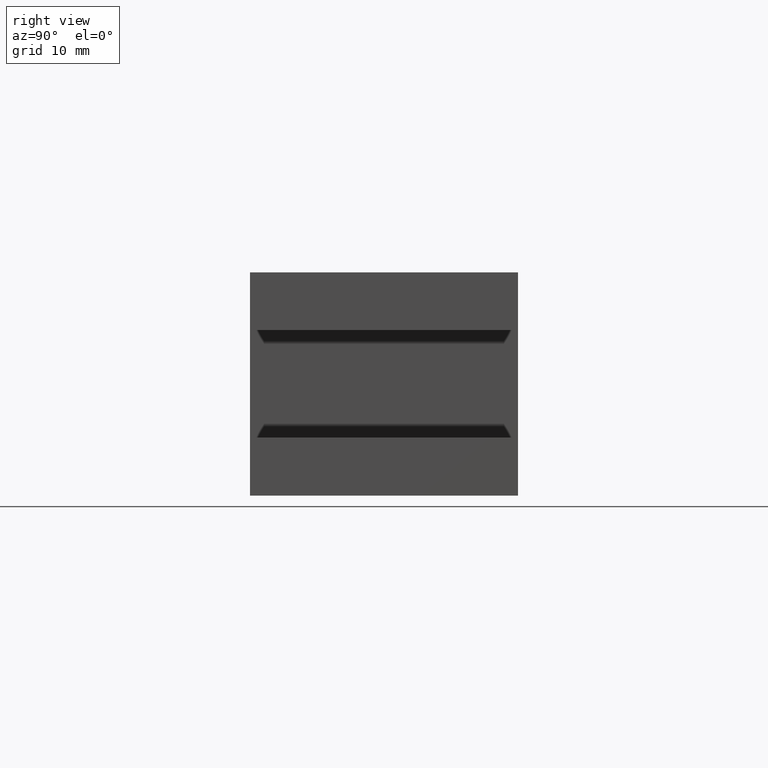
[diagram: clean part render]
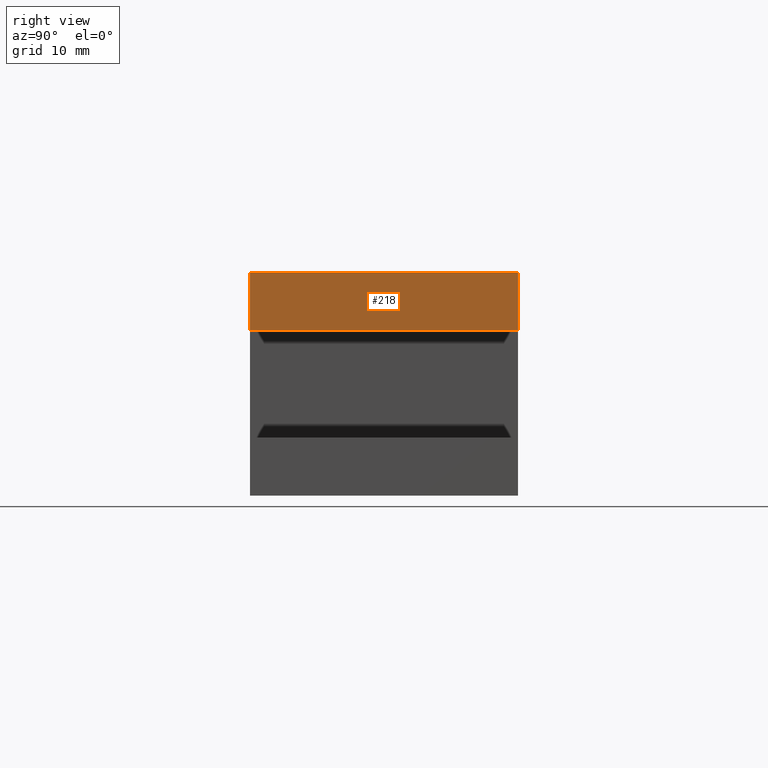
[diagram: same view with one face highlighted and labeled with its STEP entity id]
A machine part, right view. The second image highlights one B-rep face of the part: STEP entity #218.
In plain terms, the highlighted planar face has unit normal (1, 0, 0).
Its self-contained STEP definition (entity closure, byte-faithful):
#89=CARTESIAN_POINT('',(59.825283991875168,-11.961124341222460,18.499999999999993));
#90=VERTEX_POINT('',#89);
#98=CARTESIAN_POINT('',(59.825283991875160,18.038875658777538,18.499999999999993));
#99=VERTEX_POINT('',#98);
#106=CARTESIAN_POINT('',(59.825283991875168,-11.961124341222460,18.499999999999993));
#107=DIRECTION('',(0.0,1.0,0.0));
#108=VECTOR('',#107,30.0);
#109=LINE('',#106,#108);
#110=EDGE_CURVE('',#90,#99,#109,.T.);
#154=CARTESIAN_POINT('',(59.825283991875168,-11.961124341222460,25.0));
#155=VERTEX_POINT('',#154);
#156=CARTESIAN_POINT('',(59.825283991875168,-11.961124341222460,18.499999999999993));
#157=DIRECTION('',(0.0,0.0,1.0));
#158=VECTOR('',#157,6.500000000000007);
#159=LINE('',#156,#158);
#160=EDGE_CURVE('',#90,#155,#159,.T.);
#195=CARTESIAN_POINT('',(59.825283991875160,18.038875658777538,0.0));
#196=DIRECTION('',(1.0,0.0,0.0));
#197=DIRECTION('',(0.0,0.0,-1.0));
#198=AXIS2_PLACEMENT_3D('',#195,#196,#197);
#199=PLANE('',#198);
#200=ORIENTED_EDGE('',*,*,#110,.T.);
#201=CARTESIAN_POINT('',(59.825283991875160,18.038875658777538,25.0));
#202=VERTEX_POINT('',#201);
#203=CARTESIAN_POINT('',(59.825283991875160,18.038875658777538,18.499999999999993));
#204=DIRECTION('',(0.0,0.0,1.0));
#205=VECTOR('',#204,6.500000000000007);
#206=LINE('',#203,#205);
#207=EDGE_CURVE('',#99,#202,#206,.T.);
#208=ORIENTED_EDGE('',*,*,#207,.T.);
#209=CARTESIAN_POINT('',(59.825283991875160,18.038875658777538,25.0));
#210=DIRECTION('',(0.0,-1.0,0.0));
#211=VECTOR('',#210,30.0);
#212=LINE('',#209,#211);
#213=EDGE_CURVE('',#202,#155,#212,.T.);
#214=ORIENTED_EDGE('',*,*,#213,.T.);
#215=ORIENTED_EDGE('',*,*,#160,.F.);
#216=EDGE_LOOP('',(#200,#208,#214,#215));
#217=FACE_OUTER_BOUND('',#216,.T.);
#218=ADVANCED_FACE('',(#217),#199,.T.);